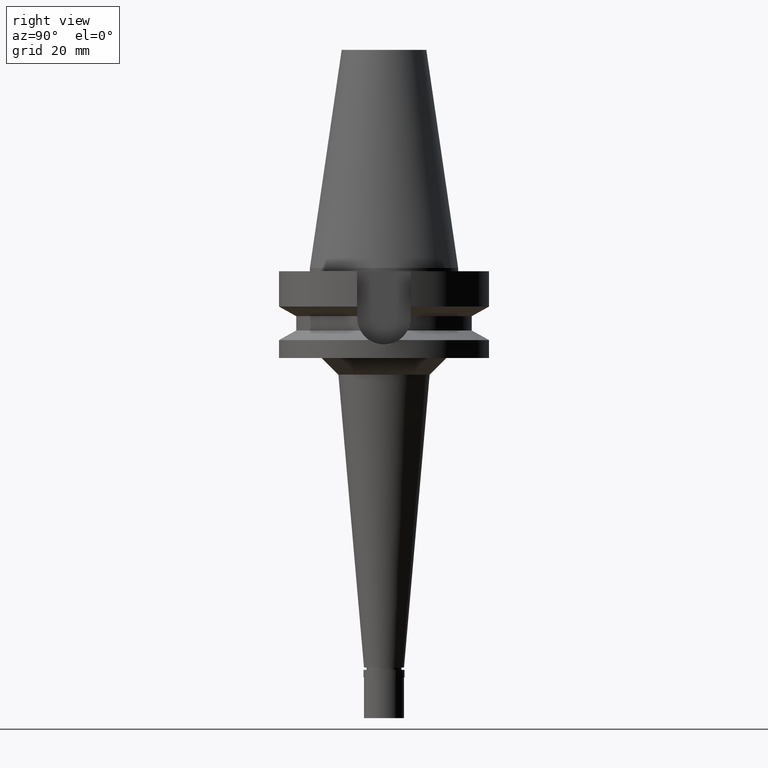
[diagram: clean part render]
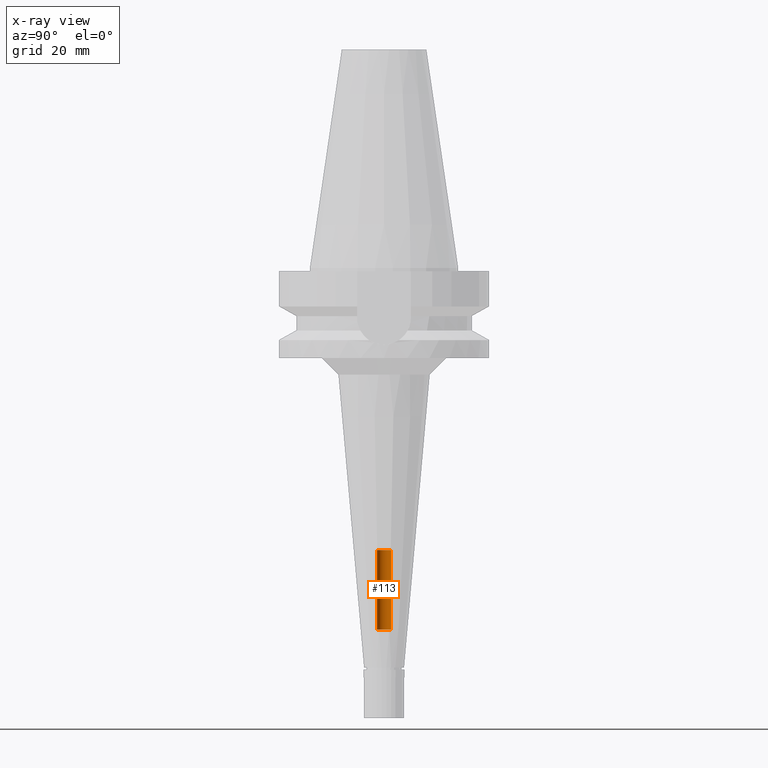
[diagram: x-ray — body ghosted, one internal face saturated and labeled with its STEP entity id]
A machine part, right view, then the same camera in x-ray: the body is ghosted and one INTERNAL B-rep face — a face not visible from any outside direction — is saturated and labeled: STEP entity #113.
In plain terms, the highlighted cylindrical surface (edge-blend (fillet) strip) has radius 2.1 mm, axis along (0, 0, -1).
Its self-contained STEP definition (entity closure, byte-faithful):
#57 = CARTESIAN_POINT ( 'NONE',  ( 0.0000000000000000000, -2.100000000000000089, -108.5000000000000000 ) ) ;
#113 = ADVANCED_FACE ( 'NONE', ( #423 ), #2529, .F. ) ;
#182 = AXIS2_PLACEMENT_3D ( 'NONE', #2621, #2369, #2832 ) ;
#197 = ORIENTED_EDGE ( 'NONE', *, *, #2831, .T. ) ;
#333 = ORIENTED_EDGE ( 'NONE', *, *, #1486, .F. ) ;
#423 = FACE_OUTER_BOUND ( 'NONE', #1207, .T. ) ;
#578 = CARTESIAN_POINT ( 'NONE',  ( 0.0000000000000000000, 2.100000000000000089, -108.5000000000000000 ) ) ;
#623 = CARTESIAN_POINT ( 'NONE',  ( 0.0000000000000000000, 2.145826121465999692E-14, -84.59999999999999432 ) ) ;
#825 = LINE ( 'NONE', #578, #1002 ) ;
#890 = VERTEX_POINT ( 'NONE', #57 ) ;
#1002 = VECTOR ( 'NONE', #1452, 1000.000000000000000 ) ;
#1106 = DIRECTION ( 'NONE',  ( 0.0000000000000000000, 0.0000000000000000000, 1.000000000000000000 ) ) ;
#1108 = DIRECTION ( 'NONE',  ( 0.0000000000000000000, 0.0000000000000000000, -1.000000000000000000 ) ) ;
#1126 = ORIENTED_EDGE ( 'NONE', *, *, #1688, .T. ) ;
#1183 = DIRECTION ( 'NONE',  ( 0.0000000000000000000, 0.0000000000000000000, 1.000000000000000000 ) ) ;
#1207 = EDGE_LOOP ( 'NONE', ( #1126, #333, #197, #1612 ) ) ;
#1342 = VERTEX_POINT ( 'NONE', #1505 ) ;
#1389 = CARTESIAN_POINT ( 'NONE',  ( 0.0000000000000000000, 2.145826121465999692E-14, 75.21999999999999886 ) ) ;
#1452 = DIRECTION ( 'NONE',  ( 0.0000000000000000000, 0.0000000000000000000, 1.000000000000000000 ) ) ;
#1486 = EDGE_CURVE ( 'NONE', #890, #2880, #2324, .T. ) ;
#1505 = CARTESIAN_POINT ( 'NONE',  ( 0.0000000000000000000, 2.100000000000000089, -108.5000000000000000 ) ) ;
#1557 = DIRECTION ( 'NONE',  ( 0.0000000000000000000, -1.000000000000000000, 0.0000000000000000000 ) ) ;
#1594 = VERTEX_POINT ( 'NONE', #1980 ) ;
#1612 = ORIENTED_EDGE ( 'NONE', *, *, #2122, .T. ) ;
#1688 = EDGE_CURVE ( 'NONE', #1594, #2880, #2189, .T. ) ;
#1980 = CARTESIAN_POINT ( 'NONE',  ( 0.0000000000000000000, 2.100000000000000089, -84.59999999999999432 ) ) ;
#2012 = DIRECTION ( 'NONE',  ( 0.0000000000000000000, 1.000000000000000000, 0.0000000000000000000 ) ) ;
#2043 = CARTESIAN_POINT ( 'NONE',  ( 0.0000000000000000000, -2.100000000000000089, -108.5000000000000000 ) ) ;
#2122 = EDGE_CURVE ( 'NONE', #1342, #1594, #825, .T. ) ;
#2189 = CIRCLE ( 'NONE', #2294, 2.100000000000000089 ) ;
#2294 = AXIS2_PLACEMENT_3D ( 'NONE', #623, #1106, #2012 ) ;
#2324 = LINE ( 'NONE', #2043, #2635 ) ;
#2369 = DIRECTION ( 'NONE',  ( 0.0000000000000000000, 0.0000000000000000000, -1.000000000000000000 ) ) ;
#2529 = CYLINDRICAL_SURFACE ( 'NONE', #2590, 2.100000000000000089 ) ;
#2543 = CIRCLE ( 'NONE', #182, 2.100000000000000089 ) ;
#2590 = AXIS2_PLACEMENT_3D ( 'NONE', #1389, #1108, #1557 ) ;
#2621 = CARTESIAN_POINT ( 'NONE',  ( 0.0000000000000000000, 2.145826121465999692E-14, -108.5000000000000000 ) ) ;
#2635 = VECTOR ( 'NONE', #1183, 1000.000000000000000 ) ;
#2649 = CARTESIAN_POINT ( 'NONE',  ( 0.0000000000000000000, -2.100000000000000089, -84.59999999999999432 ) ) ;
#2831 = EDGE_CURVE ( 'NONE', #890, #1342, #2543, .T. ) ;
#2832 = DIRECTION ( 'NONE',  ( 0.0000000000000000000, -1.000000000000000000, 0.0000000000000000000 ) ) ;
#2880 = VERTEX_POINT ( 'NONE', #2649 ) ;